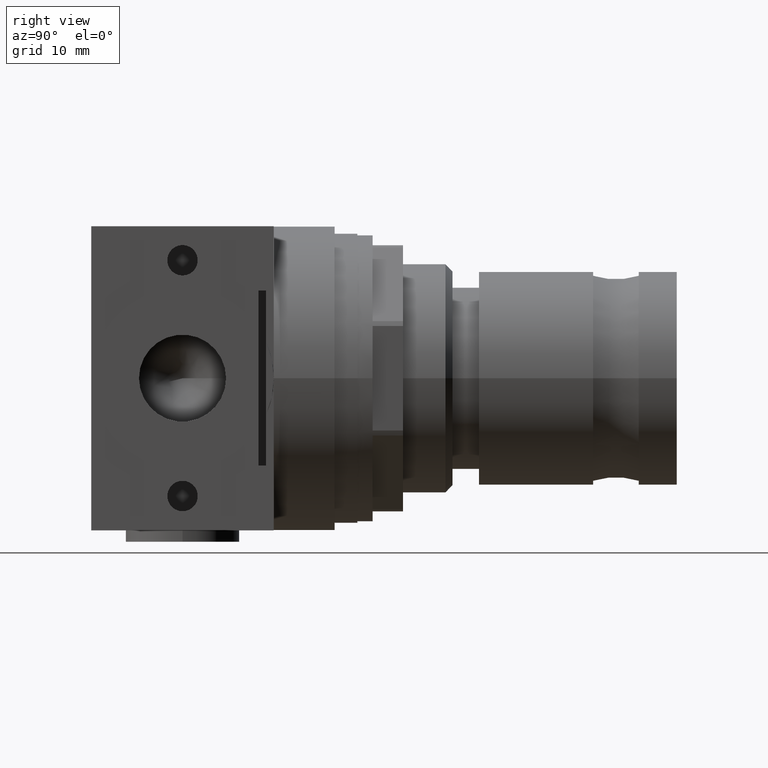
[diagram: clean part render]
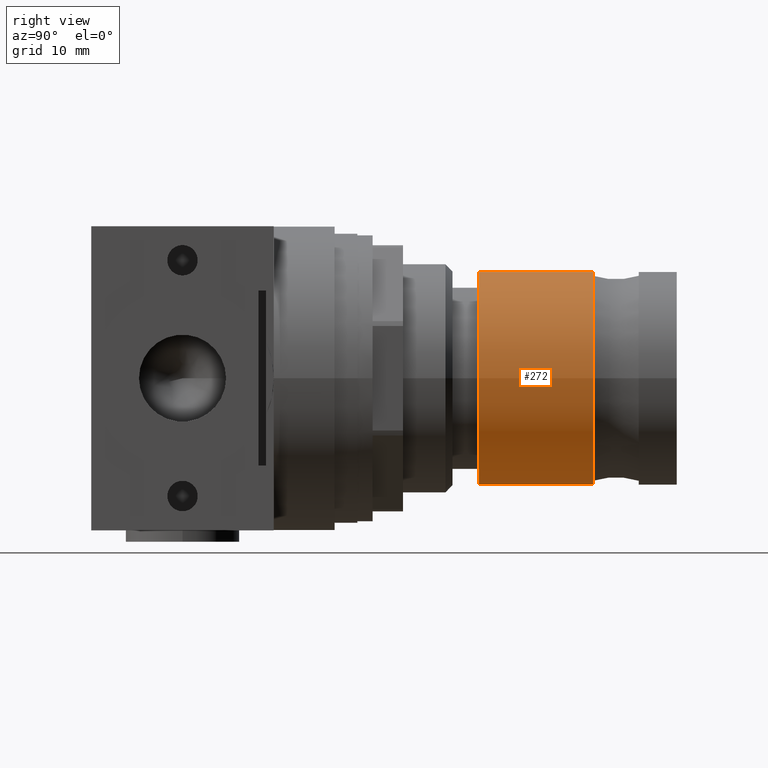
[diagram: same view with one face highlighted and labeled with its STEP entity id]
A machine part, right view. The second image highlights one B-rep face of the part: STEP entity #272.
In plain terms, the highlighted cylindrical surface (bore or boss wall) has radius 14 mm, axis along (-0, -1, 0).
Its self-contained STEP definition (entity closure, byte-faithful):
#272 = ADVANCED_FACE( '', ( #610, #611 ), #612, .T. );
#610 = FACE_OUTER_BOUND( '', #1055, .T. );
#611 = FACE_OUTER_BOUND( '', #1056, .T. );
#612 = CYLINDRICAL_SURFACE( '', #1057, 14.0000000000000 );
#1055 = EDGE_LOOP( '', ( #1623 ) );
#1056 = EDGE_LOOP( '', ( #1624 ) );
#1057 = AXIS2_PLACEMENT_3D( '', #1625, #1626, #1627 );
#1623 = ORIENTED_EDGE( '', *, *, #2554, .F. );
#1624 = ORIENTED_EDGE( '', *, *, #2426, .T. );
#1625 = CARTESIAN_POINT( '', ( 44.3291561975889, 0.000000000000000, 0.000000000000000 ) );
#1626 = DIRECTION( '', ( -1.00000000000000, -0.000000000000000, 0.000000000000000 ) );
#1627 = DIRECTION( '', ( -0.000000000000000, 0.000000000000000, -1.00000000000000 ) );
#2426 = EDGE_CURVE( '', #2823, #2823, #2824, .T. );
#2554 = EDGE_CURVE( '', #3036, #3036, #3037, .T. );
#2823 = VERTEX_POINT( '', #3400 );
#2824 = CIRCLE( '', #3401, 14.0000000000000 );
#3036 = VERTEX_POINT( '', #3674 );
#3037 = CIRCLE( '', #3675, 14.0000000000000 );
#3400 = CARTESIAN_POINT( '', ( 19.0000000000000, 0.000000000000000, -14.0000000000000 ) );
#3401 = AXIS2_PLACEMENT_3D( '', #4145, #4146, #4147 );
#3674 = CARTESIAN_POINT( '', ( 34.0000000000000, 0.000000000000000, -14.0000000000000 ) );
#3675 = AXIS2_PLACEMENT_3D( '', #4314, #4315, #4316 );
#4145 = CARTESIAN_POINT( '', ( 19.0000000000000, 0.000000000000000, 0.000000000000000 ) );
#4146 = DIRECTION( '', ( 1.00000000000000, 0.000000000000000, -0.000000000000000 ) );
#4147 = DIRECTION( '', ( -0.000000000000000, 0.000000000000000, -1.00000000000000 ) );
#4314 = CARTESIAN_POINT( '', ( 34.0000000000000, 0.000000000000000, 0.000000000000000 ) );
#4315 = DIRECTION( '', ( 1.00000000000000, 0.000000000000000, -0.000000000000000 ) );
#4316 = DIRECTION( '', ( -0.000000000000000, 0.000000000000000, -1.00000000000000 ) );